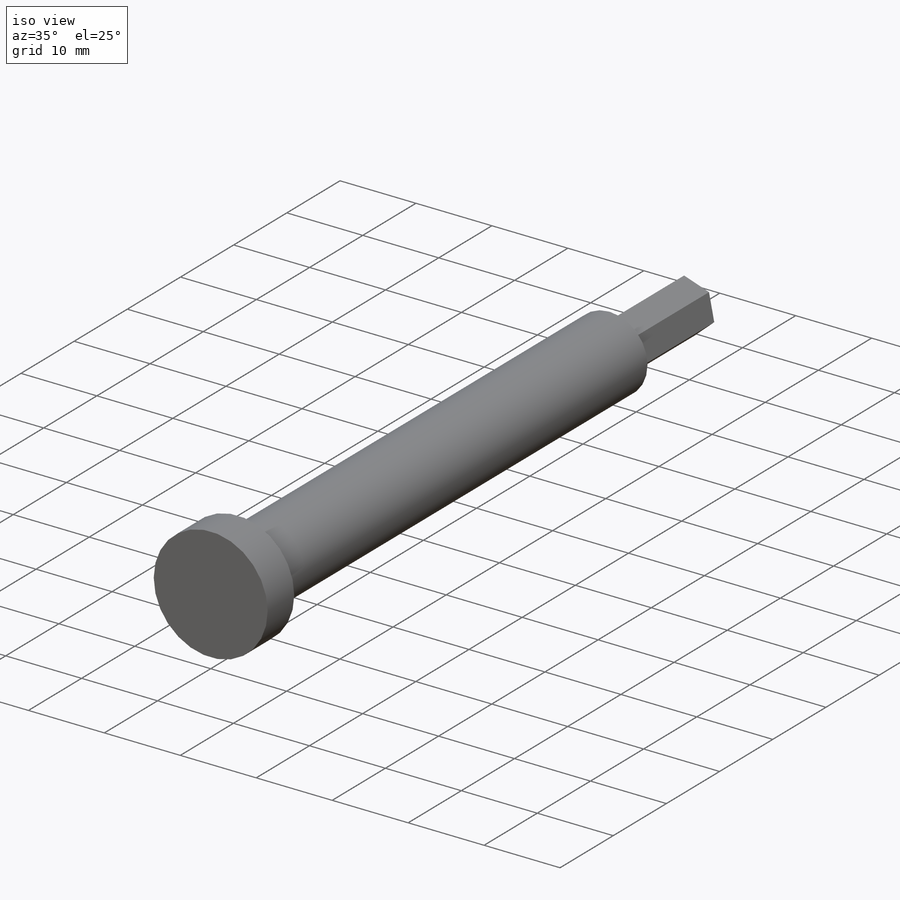
[diagram: iso view]
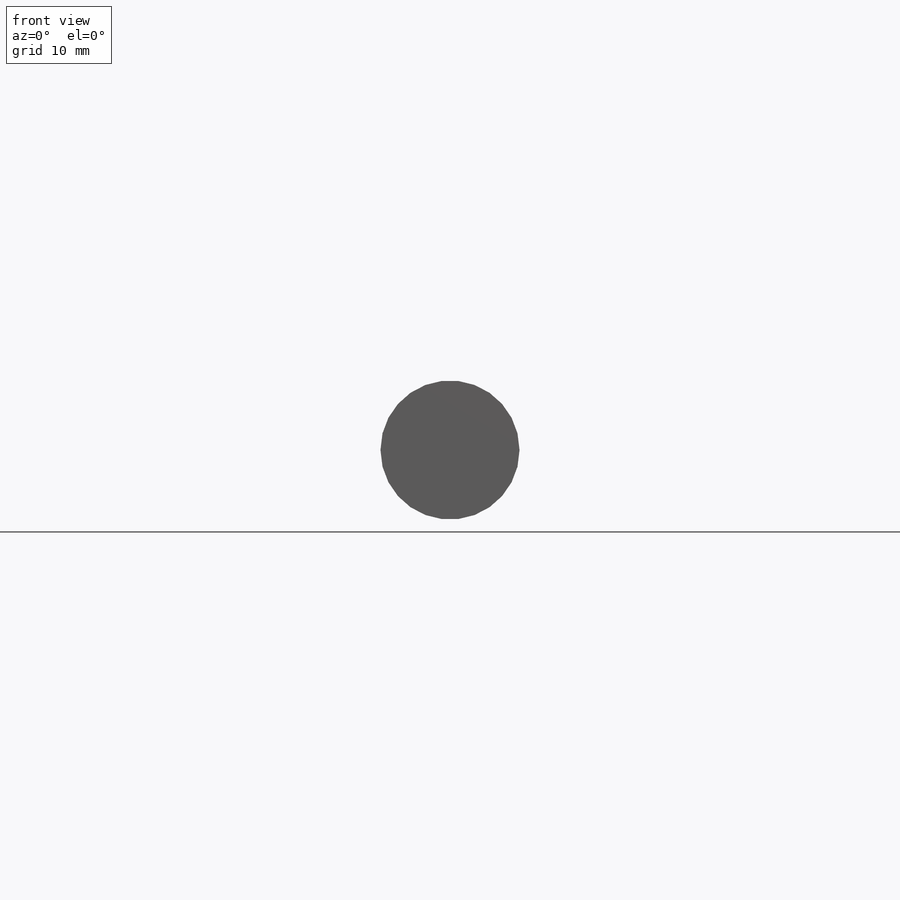
[diagram: front view]
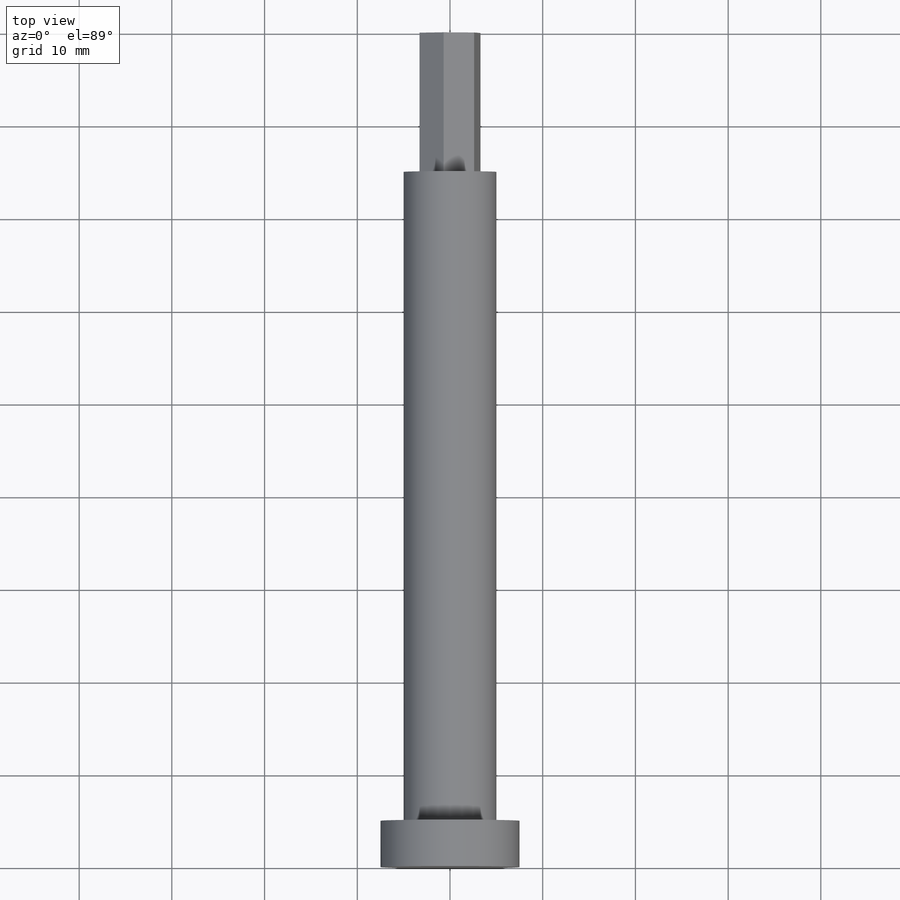
[diagram: top view]
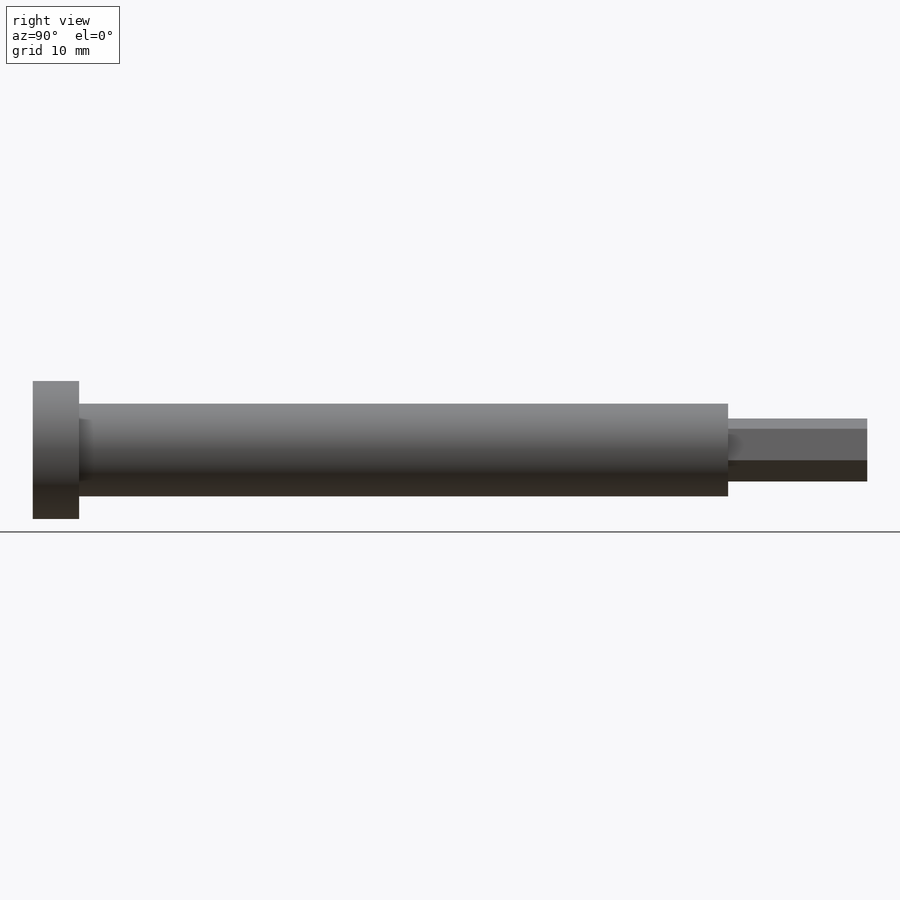
[diagram: right view]
SOLIDWORKS PART (.sldprt)
format: sldprt  version: not decoded by parser v0  size: 140,800 bytes
history: native  units: mm
features: plane x3, sketch x3, extrude x3, material x1 (+9 scaffold rows collapsed)
feature tree (19):
  scaffold x9  (default folders/planes/origin — collapsed)
  material  "Matériau <non spécifié>"
  plane  "Plan de face"
  plane  "Plan de dessus"
  plane  "Plan de droite"
  sketch  "Esquisse1"  dims[D1=6.0mm]
  extrude  "Boss.-Extru.1"  Depth=15mm
  sketch  "Esquisse2"  dims[D1=10.0mm]
  extrude  "Boss.-Extru.2"  Depth=70mm
  sketch  "Esquisse3"  dims[D1=15.0mm]
  extrude  "Boss.-Extru.3"  Depth=5mm
decode coverage: 6 of 6 modeling features carry decoded parameters
note: suppression state not decoded; provenance and decode notes live in map.json
